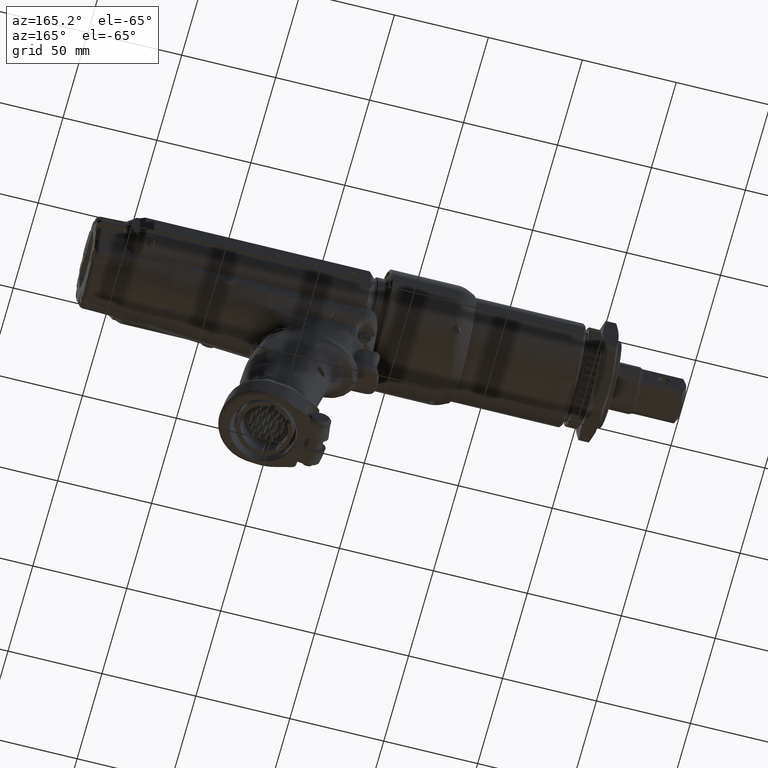
[diagram: clean part render]
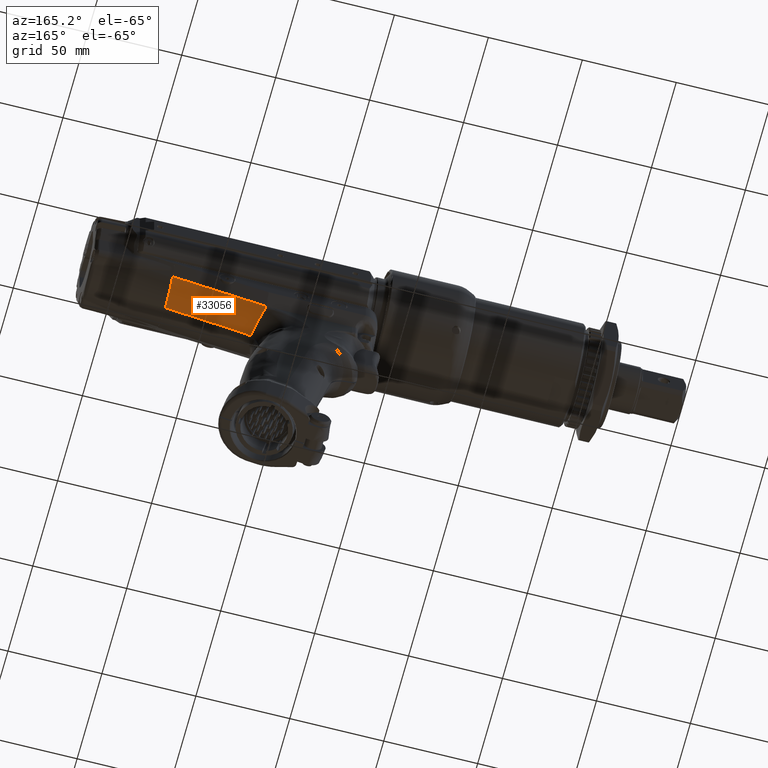
[diagram: same view with one face highlighted and labeled with its STEP entity id]
A machine part, auxiliary view. The second image highlights one B-rep face of the part: STEP entity #33056.
In plain terms, the highlighted face is a freeform B-spline surface patch.
Its self-contained STEP definition (entity closure, byte-faithful):
#2241=LINE('',#70767,#4224);
#4224=VECTOR('',#39854,10.);
#6751=FACE_OUTER_BOUND('',#8584,.T.);
#8584=EDGE_LOOP('',(#23943,#23944,#23945,#23946,#23947));
#11849=B_SPLINE_CURVE_WITH_KNOTS('',3,(#68667,#68668,#68669,#68670),
 .UNSPECIFIED.,.F.,.F.,(4,4),(0.,1.00597880598376),.UNSPECIFIED.);
#11897=B_SPLINE_CURVE_WITH_KNOTS('',3,(#71187,#71188,#71189,#71190,#71191,
#71192,#71193,#71194,#71195,#71196,#71197,#71198,#71199,#71200,#71201,#71202,
#71203,#71204,#71205,#71206,#71207,#71208,#71209,#71210,#71211,#71212),
 .UNSPECIFIED.,.F.,.F.,(4,2,2,2,2,2,2,2,2,2,2,2,4),(1.34517341830377,3.0744719434439,
4.61170791516585,6.1489438868878,9.2234158303317,12.2978877737756,15.3723597172195,
16.9095956889415,18.4468316606634,19.9840676323854,21.5213036041073,23.0585395758293,
24.1925660659876),.UNSPECIFIED.);
#11906=B_SPLINE_CURVE_WITH_KNOTS('',3,(#72020,#72021,#72022,#72023,#72024,
#72025,#72026,#72027,#72028,#72029,#72030,#72031,#72032,#72033),
 .UNSPECIFIED.,.F.,.F.,(4,2,2,2,2,2,4),(-3.58604075800134,-3.57445468263625,
-3.55857556568161,-3.5499163420919,-3.49172037456737,-2.32779805726946,
0.),.UNSPECIFIED.);
#11907=B_SPLINE_CURVE_WITH_KNOTS('',3,(#72034,#72035,#72036,#72037,#72038,
#72039,#72040,#72041,#72042,#72043,#72044,#72045,#72046,#72047,#72048,#72049,
#72050,#72051,#72052,#72053,#72054,#72055),.UNSPECIFIED.,.F.,.F.,(4,3,3,
3,3,3,3,4),(0.12075128988608,1.00000000015956,2.00000000013297,3.00000000010637,
4.00000000007978,5.00000000005319,6.00000000002659,7.),.UNSPECIFIED.);
#13532=VERTEX_POINT('',#66902);
#13663=VERTEX_POINT('',#68665);
#13698=VERTEX_POINT('',#70765);
#13704=VERTEX_POINT('',#71186);
#13709=VERTEX_POINT('',#72019);
#17461=EDGE_CURVE('',#13663,#13532,#11849,.T.);
#17524=EDGE_CURVE('',#13663,#13698,#2241,.T.);
#17534=EDGE_CURVE('',#13532,#13704,#11897,.T.);
#17544=EDGE_CURVE('',#13704,#13709,#11906,.T.);
#17545=EDGE_CURVE('',#13709,#13698,#11907,.T.);
#23943=ORIENTED_EDGE('',*,*,#17544,.F.);
#23944=ORIENTED_EDGE('',*,*,#17534,.F.);
#23945=ORIENTED_EDGE('',*,*,#17461,.F.);
#23946=ORIENTED_EDGE('',*,*,#17524,.T.);
#23947=ORIENTED_EDGE('',*,*,#17545,.F.);
#30609=B_SPLINE_SURFACE_WITH_KNOTS('',3,3,((#71799,#71800,#71801,#71802,
#71803,#71804,#71805,#71806,#71807,#71808),(#71809,#71810,#71811,#71812,
#71813,#71814,#71815,#71816,#71817,#71818),(#71819,#71820,#71821,#71822,
#71823,#71824,#71825,#71826,#71827,#71828),(#71829,#71830,#71831,#71832,
#71833,#71834,#71835,#71836,#71837,#71838),(#71839,#71840,#71841,#71842,
#71843,#71844,#71845,#71846,#71847,#71848),(#71849,#71850,#71851,#71852,
#71853,#71854,#71855,#71856,#71857,#71858),(#71859,#71860,#71861,#71862,
#71863,#71864,#71865,#71866,#71867,#71868),(#71869,#71870,#71871,#71872,
#71873,#71874,#71875,#71876,#71877,#71878),(#71879,#71880,#71881,#71882,
#71883,#71884,#71885,#71886,#71887,#71888),(#71889,#71890,#71891,#71892,
#71893,#71894,#71895,#71896,#71897,#71898),(#71899,#71900,#71901,#71902,
#71903,#71904,#71905,#71906,#71907,#71908),(#71909,#71910,#71911,#71912,
#71913,#71914,#71915,#71916,#71917,#71918),(#71919,#71920,#71921,#71922,
#71923,#71924,#71925,#71926,#71927,#71928),(#71929,#71930,#71931,#71932,
#71933,#71934,#71935,#71936,#71937,#71938),(#71939,#71940,#71941,#71942,
#71943,#71944,#71945,#71946,#71947,#71948),(#71949,#71950,#71951,#71952,
#71953,#71954,#71955,#71956,#71957,#71958),(#71959,#71960,#71961,#71962,
#71963,#71964,#71965,#71966,#71967,#71968),(#71969,#71970,#71971,#71972,
#71973,#71974,#71975,#71976,#71977,#71978),(#71979,#71980,#71981,#71982,
#71983,#71984,#71985,#71986,#71987,#71988),(#71989,#71990,#71991,#71992,
#71993,#71994,#71995,#71996,#71997,#71998),(#71999,#72000,#72001,#72002,
#72003,#72004,#72005,#72006,#72007,#72008),(#72009,#72010,#72011,#72012,
#72013,#72014,#72015,#72016,#72017,#72018)),.UNSPECIFIED.,.F.,.F.,.F.,(4,
2,2,2,2,2,2,2,2,2,4),(4,1,1,1,1,1,1,4),(0.,24.3228684679509,36.4843027019263,
39.5246612604202,41.0448405396671,41.8049301792906,42.1849749991023,42.565019818914,
44.085199098161,45.6053783774079,48.6457369359018),(0.115280206662485,1.,
2.,3.,4.,5.,6.,7.),.UNSPECIFIED.);
#33056=ADVANCED_FACE('',(#6751),#30609,.T.);
#39854=DIRECTION('',(0.98380899082009,-0.00194793026394746,0.179209584423499));
#66902=CARTESIAN_POINT('',(56.3261365819595,14.4149653299118,-38.7505730793563));
#68665=CARTESIAN_POINT('',(55.9999999999243,15.0000000000407,-37.999999999654));
#68667=CARTESIAN_POINT('Ctrl Pts',(55.9999999999243,15.0000000000407,-37.999999999654));
#68668=CARTESIAN_POINT('Ctrl Pts',(56.1085897214327,14.80377939964,-38.2493046604184));
#68669=CARTESIAN_POINT('Ctrl Pts',(56.217418523031,14.6099304363081,-38.5003444505288));
#68670=CARTESIAN_POINT('Ctrl Pts',(56.3261365819596,14.4149653299118,-38.7505730793563));
#70765=CARTESIAN_POINT('',(105.999999999922,14.9010005867999,-28.8920539405218));
#70767=CARTESIAN_POINT('',(55.9999999999291,15.0000000000865,-37.9999999996798));
#71186=CARTESIAN_POINT('',(60.70561121426,0.299999986791231,-46.1517619440249));
#71187=CARTESIAN_POINT('Ctrl Pts',(56.3261365819596,14.4149653299118,-38.7505730793563));
#71188=CARTESIAN_POINT('Ctrl Pts',(56.4659033414523,14.164320600603,-39.072264441895));
#71189=CARTESIAN_POINT('Ctrl Pts',(56.6054754103847,13.911859432446,-39.3925914315026));
#71190=CARTESIAN_POINT('Ctrl Pts',(56.8672296330894,13.4178072371134,-39.9846247474012));
#71191=CARTESIAN_POINT('Ctrl Pts',(56.989463270786,13.1770957475516,-40.2568607714395));
#71192=CARTESIAN_POINT('Ctrl Pts',(57.231275672829,12.6779221344053,-40.7856974954742));
#71193=CARTESIAN_POINT('Ctrl Pts',(57.3509219412665,12.4196720901509,-41.0425945184102));
#71194=CARTESIAN_POINT('Ctrl Pts',(57.7052458912592,11.6200271729274,-41.7886292203272));
#71195=CARTESIAN_POINT('Ctrl Pts',(57.9353882340483,11.0538387224606,-42.2533967585892));
#71196=CARTESIAN_POINT('Ctrl Pts',(58.3804489289384,9.86496666768318,-43.1124369897286));
#71197=CARTESIAN_POINT('Ctrl Pts',(58.5952354408537,9.24171284672317,-43.5060653725463));
#71198=CARTESIAN_POINT('Ctrl Pts',(59.0061894296029,7.94678854537632,-44.2158536842459));
#71199=CARTESIAN_POINT('Ctrl Pts',(59.2024457589084,7.27536658492243,-44.5323954021117));
#71200=CARTESIAN_POINT('Ctrl Pts',(59.4807089950643,6.23927982510829,-44.9456065668083));
#71201=CARTESIAN_POINT('Ctrl Pts',(59.5707510352128,5.8891126203335,-45.0730392206096));
#71202=CARTESIAN_POINT('Ctrl Pts',(59.7452003121586,5.18046999786992,-45.3069980398824));
#71203=CARTESIAN_POINT('Ctrl Pts',(59.8293892743297,4.82185207983271,-45.4132377180224));
#71204=CARTESIAN_POINT('Ctrl Pts',(59.9927795593587,4.09825172771962,-45.605786429009));
#71205=CARTESIAN_POINT('Ctrl Pts',(60.0721680186631,3.73335618623016,-45.6923476337625));
#71206=CARTESIAN_POINT('Ctrl Pts',(60.2280112622222,2.99941844855845,-45.8483841822349));
#71207=CARTESIAN_POINT('Ctrl Pts',(60.3049513068933,2.63041298851803,-45.9184869642242));
#71208=CARTESIAN_POINT('Ctrl Pts',(60.4563565227592,1.88954007002731,-46.0422821012445));
#71209=CARTESIAN_POINT('Ctrl Pts',(60.5290616451764,1.51633763270145,-46.0936121774255));
#71210=CARTESIAN_POINT('Ctrl Pts',(60.6363951320423,0.86129423839057,-46.1463636526653));
#71211=CARTESIAN_POINT('Ctrl Pts',(60.6758596636891,0.581033979617771,-46.1571024399937));
#71212=CARTESIAN_POINT('Ctrl Pts',(60.705611402858,0.299999999100237,-46.1517623469895));
#71799=CARTESIAN_POINT('Ctrl Pts',(106.00000000002,0.286408146883866,-36.6450711841949));
#71800=CARTESIAN_POINT('Ctrl Pts',(106.00000000002,1.01904992677159,-36.6334309656997));
#71801=CARTESIAN_POINT('Ctrl Pts',(106.00000000002,2.57875504435273,-36.5134492391408));
#71802=CARTESIAN_POINT('Ctrl Pts',(106.00000000002,4.93284851925522,-36.0178767487965));
#71803=CARTESIAN_POINT('Ctrl Pts',(106.00000000002,7.27217560998411,-35.1756252887555));
#71804=CARTESIAN_POINT('Ctrl Pts',(106.00000000001,9.49381853843909,-34.0090958818414));
#71805=CARTESIAN_POINT('Ctrl Pts',(106.00000000002,11.533740298599,-32.5409764939364));
#71806=CARTESIAN_POINT('Ctrl Pts',(106.00000000001,13.3154423112874,-30.8416598821155));
#71807=CARTESIAN_POINT('Ctrl Pts',(106.00000000002,14.3651762033672,-29.5306245737594));
#71808=CARTESIAN_POINT('Ctrl Pts',(106.00000000002,14.9010005864599,-28.8920539402194));
#71809=CARTESIAN_POINT('Ctrl Pts',(98.3621146121276,0.285316752661627,-37.9919811132285));
#71810=CARTESIAN_POINT('Ctrl Pts',(98.3343848197016,1.01522251476631,-37.9859531687083));
#71811=CARTESIAN_POINT('Ctrl Pts',(98.2744151344326,2.57001570966359,-37.8835686873051));
#71812=CARTESIAN_POINT('Ctrl Pts',(98.1771571424396,4.91971399228787,-37.4125091049355));
#71813=CARTESIAN_POINT('Ctrl Pts',(98.0736487616606,7.25803020090537,-36.5959770584005));
#71814=CARTESIAN_POINT('Ctrl Pts',(97.9681564006506,9.48223165329008,-35.4552990400664));
#71815=CARTESIAN_POINT('Ctrl Pts',(97.8635062935296,11.5283125461865,-34.0124604004484));
#71816=CARTESIAN_POINT('Ctrl Pts',(97.7639237083197,13.3193961448075,-32.3368462059924));
#71817=CARTESIAN_POINT('Ctrl Pts',(97.6991751899906,14.3776308223544,-31.0409806842335));
#71818=CARTESIAN_POINT('Ctrl Pts',(97.6667258579997,14.9175003715187,-30.4100341679545));
#71819=CARTESIAN_POINT('Ctrl Pts',(90.7241928670846,0.284391488413744,-39.3389454882409));
#71820=CARTESIAN_POINT('Ctrl Pts',(90.6687735966966,1.01197847016374,-39.3387622591548));
#71821=CARTESIAN_POINT('Ctrl Pts',(90.5492275694566,2.56262260013075,-39.2562178433245));
#71822=CARTESIAN_POINT('Ctrl Pts',(90.3549747771396,4.90873866208485,-38.8111947595114));
#71823=CARTESIAN_POINT('Ctrl Pts',(90.1480884158596,7.24646213321365,-38.0211666665274));
#71824=CARTESIAN_POINT('Ctrl Pts',(89.9370900720106,9.47321070436787,-36.9063204503864));
#71825=CARTESIAN_POINT('Ctrl Pts',(89.7276285062596,11.5249979187871,-35.4879166028344));
#71826=CARTESIAN_POINT('Ctrl Pts',(89.5281660556396,13.3246029552765,-33.8343962098995));
#71827=CARTESIAN_POINT('Ctrl Pts',(89.3983777050996,14.3904864211959,-32.5521065354365));
#71828=CARTESIAN_POINT('Ctrl Pts',(89.3333418277296,14.9340003741548,-31.9280344128154));
#71829=CARTESIAN_POINT('Ctrl Pts',(79.2673679769072,0.283258166671502,-41.359455755252));
#71830=CARTESIAN_POINT('Ctrl Pts',(79.1704793659144,1.00799958969609,-41.3683958392887));
#71831=CARTESIAN_POINT('Ctrl Pts',(78.9621788626311,2.55347022749819,-41.3190512117756));
#71832=CARTESIAN_POINT('Ctrl Pts',(78.6228480249399,4.89538285064989,-40.9154185670594));
#71833=CARTESIAN_POINT('Ctrl Pts',(78.2611055507902,7.2328189129618,-40.1663480653154));
#71834=CARTESIAN_POINT('Ctrl Pts',(77.8918381089495,9.46337169773586,-39.0902174227373));
#71835=CARTESIAN_POINT('Ctrl Pts',(77.5249222667396,11.523066707088,-37.7071657711063));
#71836=CARTESIAN_POINT('Ctrl Pts',(77.17519365581,13.3342160209369,-36.0843160581074));
#71837=CARTESIAN_POINT('Ctrl Pts',(76.9474047926494,14.4103465369534,-34.8199433365424));
#71838=CARTESIAN_POINT('Ctrl Pts',(76.8332816901199,14.9587503466118,-34.2050318823613));
#71839=CARTESIAN_POINT('Ctrl Pts',(75.4482561083189,0.282922871353646,-42.0330011231881));
#71840=CARTESIAN_POINT('Ctrl Pts',(75.337562715549,1.00682126395085,-42.0450395875599));
#71841=CARTESIAN_POINT('Ctrl Pts',(75.0997950173716,2.55074140931179,-42.0073270304746));
#71842=CARTESIAN_POINT('Ctrl Pts',(74.7122007039995,4.89144731693492,-41.6178721370143));
#71843=CARTESIAN_POINT('Ctrl Pts',(74.2989039051397,7.22888757253245,-40.8826474342794));
#71844=CARTESIAN_POINT('Ctrl Pts',(73.8769088571596,9.46070568591568,-39.8194113172183));
#71845=CARTESIAN_POINT('Ctrl Pts',(73.4574996014596,11.5229283101372,-38.4479236455164));
#71846=CARTESIAN_POINT('Ctrl Pts',(73.0576378802995,13.3377199746561,-36.8348843647844));
#71847=CARTESIAN_POINT('Ctrl Pts',(72.7971286621602,14.4170623866499,-35.5760764357884));
#71848=CARTESIAN_POINT('Ctrl Pts',(72.6666185391802,14.9670002907791,-34.9640267469203));
#71849=CARTESIAN_POINT('Ctrl Pts',(70.6746589640868,0.282556821574554,-42.8748972627098));
#71850=CARTESIAN_POINT('Ctrl Pts',(70.5467137406872,1.00553227988128,-42.8908845943255));
#71851=CARTESIAN_POINT('Ctrl Pts',(70.2722174091561,2.54771522594755,-42.8684259691137));
#71852=CARTESIAN_POINT('Ctrl Pts',(69.8243451238802,4.88714513355119,-42.4971821311734));
#71853=CARTESIAN_POINT('Ctrl Pts',(69.3466116446395,7.22471015198028,-41.7795196238923));
#71854=CARTESIAN_POINT('Ctrl Pts',(68.8586660156295,9.45810664841367,-40.7324018033474));
#71855=CARTESIAN_POINT('Ctrl Pts',(68.3735514032403,11.5233593255956,-39.3751072173393));
#71856=CARTESIAN_POINT('Ctrl Pts',(67.9108924756399,13.3424580152192,-37.7738270021882));
#71857=CARTESIAN_POINT('Ctrl Pts',(67.6093660329195,14.4255717198208,-36.5214736454993));
#71858=CARTESIAN_POINT('Ctrl Pts',(67.4583164504299,14.9773126678257,-35.9127654366673));
#71859=CARTESIAN_POINT('Ctrl Pts',(69.7199614093185,0.282486161379627,-43.0432717424315));
#71860=CARTESIAN_POINT('Ctrl Pts',(69.5885664995837,1.00528330482026,-43.0600511064181));
#71861=CARTESIAN_POINT('Ctrl Pts',(69.3067314925679,2.5471282004563,-43.0406795032592));
#71862=CARTESIAN_POINT('Ctrl Pts',(68.8468110503197,4.88631389780925,-42.6731007322953));
#71863=CARTESIAN_POINT('Ctrl Pts',(68.3561978749301,7.22390951024783,-41.9589617907423));
#71864=CARTESIAN_POINT('Ctrl Pts',(67.8550696465097,9.4576215070647,-40.9150660520263));
#71865=CARTESIAN_POINT('Ctrl Pts',(67.3568211475501,11.5234740409599,-39.5605954848052));
#71866=CARTESIAN_POINT('Ctrl Pts',(66.8816093510502,13.3434224663339,-37.9616405189963));
#71867=CARTESIAN_POINT('Ctrl Pts',(66.57188355642,14.4272788777611,-36.7105521633302));
#71868=CARTESIAN_POINT('Ctrl Pts',(66.4167281494399,14.9793750004447,-36.1025000379063));
#71869=CARTESIAN_POINT('Ctrl Pts',(68.2877893262598,0.282384679720785,-43.2958632146105));
#71870=CARTESIAN_POINT('Ctrl Pts',(68.1512261367379,1.00492549889617,-43.3138405013665));
#71871=CARTESIAN_POINT('Ctrl Pts',(67.858400856752,2.54628093479179,-43.2991451748624));
#71872=CARTESIAN_POINT('Ctrl Pts',(67.3804207267701,4.8851204296319,-42.9370999818043));
#71873=CARTESIAN_POINT('Ctrl Pts',(66.8704897229297,7.22277230613454,-42.2282655142703));
#71874=CARTESIAN_POINT('Ctrl Pts',(66.3495779531601,9.45695732766414,-41.1892036337802));
#71875=CARTESIAN_POINT('Ctrl Pts',(65.8316075658901,11.5236985277893,-39.8389508992443));
#71876=CARTESIAN_POINT('Ctrl Pts',(65.3375352525497,13.3449003834678,-38.2434480923383));
#71877=CARTESIAN_POINT('Ctrl Pts',(65.0154825146198,14.4298498645998,-36.9942214682032));
#71878=CARTESIAN_POINT('Ctrl Pts',(64.8541550634897,14.9824688768272,-36.3871366655313));
#71879=CARTESIAN_POINT('Ctrl Pts',(67.8104912771136,0.282350245427411,-43.3800299519939));
#71880=CARTESIAN_POINT('Ctrl Pts',(67.6721869685868,1.00480399848389,-43.3983991139146));
#71881=CARTESIAN_POINT('Ctrl Pts',(67.3756664719135,2.54599173315439,-43.3852919204727));
#71882=CARTESIAN_POINT('Ctrl Pts',(66.8916296661698,4.88471172647018,-43.0251028718482));
#71883=CARTESIAN_POINT('Ctrl Pts',(66.3752375624597,7.22238023935258,-42.3180436855202));
#71884=CARTESIAN_POINT('Ctrl Pts',(65.84772598836,9.45672297502012,-41.2805952203882));
#71885=CARTESIAN_POINT('Ctrl Pts',(65.3231934938201,11.5237626540425,-39.9317453658033));
#71886=CARTESIAN_POINT('Ctrl Pts',(64.8228622528402,13.3453866238036,-38.3373853295193));
#71887=CARTESIAN_POINT('Ctrl Pts',(64.4967300222194,14.4307047305017,-37.0887706818622));
#71888=CARTESIAN_POINT('Ctrl Pts',(64.3333589854799,14.9835000469531,-36.4820043172642));
#71889=CARTESIAN_POINT('Ctrl Pts',(67.0944092055758,0.282304350872165,-43.5063573532124));
#71890=CARTESIAN_POINT('Ctrl Pts',(66.9535633112038,1.00464215455226,-43.5253466261794));
#71891=CARTESIAN_POINT('Ctrl Pts',(66.6516283333137,2.54560813945856,-43.514557433358));
#71892=CARTESIAN_POINT('Ctrl Pts',(66.1586518920601,4.88417920064548,-43.1571397056043));
#71893=CARTESIAN_POINT('Ctrl Pts',(65.6326552228199,7.2218882624318,-42.4527321684653));
#71894=CARTESIAN_POINT('Ctrl Pts',(65.09526649752,9.45646714281535,-41.4176947374583));
#71895=CARTESIAN_POINT('Ctrl Pts',(64.5608464241902,11.5239376506972,-40.0709426077973));
#71896=CARTESIAN_POINT('Ctrl Pts',(64.0510195823997,13.3461627098151,-38.4782928060423));
#71897=CARTESIAN_POINT('Ctrl Pts',(63.71865411889,14.4320019774683,-37.2305951788513));
#71898=CARTESIAN_POINT('Ctrl Pts',(63.5521645420601,14.9850468027883,-36.6243058543202));
#71899=CARTESIAN_POINT('Ctrl Pts',(66.8557111015127,0.282278848057283,-43.5483503037052));
#71900=CARTESIAN_POINT('Ctrl Pts',(66.713870580875,1.00455182816796,-43.5674773119724));
#71901=CARTESIAN_POINT('Ctrl Pts',(66.4098672464972,2.54538745144413,-43.5576291087704));
#71902=CARTESIAN_POINT('Ctrl Pts',(65.9136163672199,4.88385282993206,-43.2011798707873));
#71903=CARTESIAN_POINT('Ctrl Pts',(65.3842513177794,7.22154660837647,-42.4976874141992));
#71904=CARTESIAN_POINT('Ctrl Pts',(64.8435436647303,9.45620503645072,-41.4634694129642));
#71905=CARTESIAN_POINT('Ctrl Pts',(64.3059462021099,11.5238504358124,-40.1174159629872));
#71906=CARTESIAN_POINT('Ctrl Pts',(63.7932076836302,13.3463352369503,-38.5253199652922));
#71907=CARTESIAN_POINT('Ctrl Pts',(63.4590253262001,14.4324070263482,-37.2779066969562));
#71908=CARTESIAN_POINT('Ctrl Pts',(63.29161836265,14.9855626811676,-36.6717666652853));
#71909=CARTESIAN_POINT('Ctrl Pts',(66.4978377178743,0.28227926628758,-43.611745140878));
#71910=CARTESIAN_POINT('Ctrl Pts',(66.3550396366165,1.00455411312518,-43.631340177061));
#71911=CARTESIAN_POINT('Ctrl Pts',(66.0488849556702,2.54540654469135,-43.6222980449515));
#71912=CARTESIAN_POINT('Ctrl Pts',(65.5487677083299,4.88392479916696,-43.2671554076042));
#71913=CARTESIAN_POINT('Ctrl Pts',(65.0149150323302,7.22170433185168,-42.5649352307673));
#71914=CARTESIAN_POINT('Ctrl Pts',(64.4692688835,9.45647901094397,-41.5318981205023));
#71915=CARTESIAN_POINT('Ctrl Pts',(63.9264042216998,11.5242688455867,-40.1868993177053));
#71916=CARTESIAN_POINT('Ctrl Pts',(63.4082956283298,13.3469193936774,-38.5956933188582));
#71917=CARTESIAN_POINT('Ctrl Pts',(63.0703775665094,14.4331182542594,-37.3487812739032));
#71918=CARTESIAN_POINT('Ctrl Pts',(62.9011202857798,14.9863358627795,-36.7428993736953));
#71919=CARTESIAN_POINT('Ctrl Pts',(66.3779421039801,0.282195491532929,-43.632025245629));
#71920=CARTESIAN_POINT('Ctrl Pts',(66.2336817786208,1.00425585000893,-43.6511962840892));
#71921=CARTESIAN_POINT('Ctrl Pts',(65.9247880789125,2.54465184235794,-43.6437396055285));
#71922=CARTESIAN_POINT('Ctrl Pts',(65.4211950705601,4.88272814361187,-43.2893330987813));
#71923=CARTESIAN_POINT('Ctrl Pts',(64.88472195195,7.22029991194115,-42.5877360674203));
#71924=CARTESIAN_POINT('Ctrl Pts',(64.3374608823894,9.45511985069509,-41.5551771626683));
#71925=CARTESIAN_POINT('Ctrl Pts',(63.7940594307699,11.5232138997956,-40.2104944533813));
#71926=CARTESIAN_POINT('Ctrl Pts',(63.2764757611801,13.3464060619083,-38.6194353339112));
#71927=CARTESIAN_POINT('Ctrl Pts',(62.9396052975496,14.4331290160435,-37.3725138348262));
#71928=CARTESIAN_POINT('Ctrl Pts',(62.7708097574002,14.9865938760973,-36.7666365989653));
#71929=CARTESIAN_POINT('Ctrl Pts',(66.1410897501803,0.282445013095509,-43.6768286580881));
#71930=CARTESIAN_POINT('Ctrl Pts',(65.9995703249353,1.00514551350445,-43.6980375771685));
#71931=CARTESIAN_POINT('Ctrl Pts',(65.6952145835741,2.54692461024077,-43.6872225094062));
#71932=CARTESIAN_POINT('Ctrl Pts',(65.1954855789197,4.88640095904669,-43.3328097808213));
#71933=CARTESIAN_POINT('Ctrl Pts',(64.6593036350702,7.22473184295404,-42.6314831212703));
#71934=CARTESIAN_POINT('Ctrl Pts',(64.1085994415996,9.45961008592946,-41.5994708726602));
#71935=CARTESIAN_POINT('Ctrl Pts',(63.5580088641697,11.5270401828563,-40.2556039935483));
#71936=CARTESIAN_POINT('Ctrl Pts',(63.0299152600998,13.3488987530835,-38.6655871579182));
#71937=CARTESIAN_POINT('Ctrl Pts',(62.6837092756702,14.4342760318096,-37.4195247175023));
#71938=CARTESIAN_POINT('Ctrl Pts',(62.5104592895402,14.98710936697,-36.8140617593243));
#71939=CARTESIAN_POINT('Ctrl Pts',(66.0226486630169,0.282537726154782,-43.7008773497193));
#71940=CARTESIAN_POINT('Ctrl Pts',(65.8818533155399,1.00547509458253,-43.7227185756758));
#71941=CARTESIAN_POINT('Ctrl Pts',(65.5784957401761,2.54775080833778,-43.7107178863875));
#71942=CARTESIAN_POINT('Ctrl Pts',(65.0793716393198,4.8877398703672,-43.3561578557952));
#71943=CARTESIAN_POINT('Ctrl Pts',(64.5426310831596,7.22635398120132,-42.6547541542922));
#71944=CARTESIAN_POINT('Ctrl Pts',(63.9901807534395,9.46126402530654,-41.6227414178822));
#71945=CARTESIAN_POINT('Ctrl Pts',(63.4366705875097,11.5284665064794,-40.2789527870103));
#71946=CARTESIAN_POINT('Ctrl Pts',(62.9046442799397,13.3498565011365,-38.6890869610982));
#71947=CARTESIAN_POINT('Ctrl Pts',(62.5550939674301,14.4347572774093,-37.4431749095102));
#71948=CARTESIAN_POINT('Ctrl Pts',(62.3802384686703,14.9873672026679,-36.8377826435703));
#71949=CARTESIAN_POINT('Ctrl Pts',(65.4329644628362,0.283157288443637,-43.8292893815113));
#71950=CARTESIAN_POINT('Ctrl Pts',(65.2971428639841,1.00767424034915,-43.8547275310842));
#71951=CARTESIAN_POINT('Ctrl Pts',(65.0006916861273,2.55321016992143,-43.8344762396059));
#71952=CARTESIAN_POINT('Ctrl Pts',(64.5068002028699,4.89656496562256,-43.4777679409733));
#71953=CARTESIAN_POINT('Ctrl Pts',(63.96826082869,7.23700776734487,-42.7746519540122));
#71954=CARTESIAN_POINT('Ctrl Pts',(63.4067661936794,9.4720655007735,-41.7414559459722));
#71955=CARTESIAN_POINT('Ctrl Pts',(62.8370081148102,11.5376830163917,-40.3970603740033));
#71956=CARTESIAN_POINT('Ctrl Pts',(62.2824464647799,13.3558812972658,-38.8071681725282));
#71957=CARTESIAN_POINT('Ctrl Pts',(61.9134195445301,14.4375587890093,-37.5616148368932));
#71958=CARTESIAN_POINT('Ctrl Pts',(61.7292353299497,14.9886561812468,-36.9563686730142));
#71959=CARTESIAN_POINT('Ctrl Pts',(64.9670916667321,0.283866187461371,-43.9582432708547));
#71960=CARTESIAN_POINT('Ctrl Pts',(64.8354326048786,1.01017764253798,-43.9858052808527));
#71961=CARTESIAN_POINT('Ctrl Pts',(64.5430902057344,2.5592175282071,-43.9558568622432));
#71962=CARTESIAN_POINT('Ctrl Pts',(64.05239944667,4.90625520435513,-43.5935341242502));
#71963=CARTESIAN_POINT('Ctrl Pts',(63.5114727739399,7.24867029795051,-42.8850399468573));
#71964=CARTESIAN_POINT('Ctrl Pts',(62.9418745903101,9.483832271287,-41.8469470304222));
#71965=CARTESIAN_POINT('Ctrl Pts',(62.3583562063402,11.5476302101346,-40.4982832667452));
#71966=CARTESIAN_POINT('Ctrl Pts',(61.7851376549995,13.3622273245671,-38.9049028359382));
#71967=CARTESIAN_POINT('Ctrl Pts',(61.4001864880499,14.4402883283788,-37.6574723967562));
#71968=CARTESIAN_POINT('Ctrl Pts',(61.2083615306999,14.9896875052599,-37.0512504823652));
#71969=CARTESIAN_POINT('Ctrl Pts',(64.052846570845,0.285757895133126,-44.2668669346062));
#71970=CARTESIAN_POINT('Ctrl Pts',(63.9301548260707,1.01682439632319,-44.2970791195313));
#71971=CARTESIAN_POINT('Ctrl Pts',(63.642705079216,2.57462265269348,-44.2418232319248));
#71972=CARTESIAN_POINT('Ctrl Pts',(63.1560989802599,4.93107350007649,-43.8606555674832));
#71973=CARTESIAN_POINT('Ctrl Pts',(62.6079036553799,7.27848621284962,-43.1336051996622));
#71974=CARTESIAN_POINT('Ctrl Pts',(62.0195287427102,9.51382787972971,-42.0780683450202));
#71975=CARTESIAN_POINT('Ctrl Pts',(61.4059126107702,11.5728461987308,-40.7135810339963));
#71976=CARTESIAN_POINT('Ctrl Pts',(60.7929006675301,13.3780746396808,-39.1065833642733));
#71977=CARTESIAN_POINT('Ctrl Pts',(60.3744702005794,14.4467568758381,-37.8512810450642));
#71978=CARTESIAN_POINT('Ctrl Pts',(60.1665481279794,14.9917502835777,-37.2410260878903));
#71979=CARTESIAN_POINT('Ctrl Pts',(63.6042640742487,0.286938488471251,-44.4466687045376));
#71980=CARTESIAN_POINT('Ctrl Pts',(63.4863550196924,1.0209594213742,-44.477370253266));
#71981=CARTESIAN_POINT('Ctrl Pts',(63.1996313553788,2.58399228538404,-44.4065354670453));
#71982=CARTESIAN_POINT('Ctrl Pts',(62.7138833269498,4.94615640135177,-44.0121125868732));
#71983=CARTESIAN_POINT('Ctrl Pts',(62.1608321722894,7.29658563995006,-43.2718559117893));
#71984=CARTESIAN_POINT('Ctrl Pts',(61.5618620153598,9.53200290684223,-42.2037412303963));
#71985=CARTESIAN_POINT('Ctrl Pts',(60.9320381442201,11.5880705264671,-40.8276660480812));
#71986=CARTESIAN_POINT('Ctrl Pts',(60.2980640714402,13.3875492952291,-39.2105065174782));
#71987=CARTESIAN_POINT('Ctrl Pts',(59.8622266570198,14.4504869468236,-37.9491867593012));
#71988=CARTESIAN_POINT('Ctrl Pts',(59.6459193247399,14.9927811225016,-37.3358632690323));
#71989=CARTESIAN_POINT('Ctrl Pts',(62.2938554468153,0.291221357108888,-45.0581374956491));
#71990=CARTESIAN_POINT('Ctrl Pts',(62.1908916592249,1.03590645881273,-45.0874418665314));
#71991=CARTESIAN_POINT('Ctrl Pts',(61.8997080327756,2.61698360199923,-44.9623970932901));
#71992=CARTESIAN_POINT('Ctrl Pts',(61.41123610723,4.99923601229945,-44.5174061360272));
#71993=CARTESIAN_POINT('Ctrl Pts',(60.8381857510401,7.36023142197363,-43.7264459580823));
#71994=CARTESIAN_POINT('Ctrl Pts',(60.2020965224299,9.59583425461082,-42.6097040673163));
#71995=CARTESIAN_POINT('Ctrl Pts',(59.51856298101,11.6414077118436,-41.1884654564883));
#71996=CARTESIAN_POINT('Ctrl Pts',(58.8170610141194,13.4205181220248,-39.5313197864612));
#71997=CARTESIAN_POINT('Ctrl Pts',(58.3261203158597,14.4631321963225,-38.2460402727742));
#71998=CARTESIAN_POINT('Ctrl Pts',(58.0832005064301,14.9958752874324,-37.6205264431092));
#71999=CARTESIAN_POINT('Ctrl Pts',(61.4662072422254,0.295079345010519,-45.563080268013));
#72000=CARTESIAN_POINT('Ctrl Pts',(61.3742286101579,1.04930659328106,-45.5875611964358));
#72001=CARTESIAN_POINT('Ctrl Pts',(61.0712650603488,2.64550963576879,-45.4162190370977));
#72002=CARTESIAN_POINT('Ctrl Pts',(60.5742798135295,5.04509865248049,-44.9228564497533));
#72003=CARTESIAN_POINT('Ctrl Pts',(59.9810470284399,7.41516681951916,-44.0830690151562));
#72004=CARTESIAN_POINT('Ctrl Pts',(59.3135030952696,9.65083776981661,-42.9191605788562));
#72005=CARTESIAN_POINT('Ctrl Pts',(58.5877827194897,11.6872177684274,-41.4537519380952));
#72006=CARTESIAN_POINT('Ctrl Pts',(57.8354578248097,13.4485754833573,-39.7571224445703));
#72007=CARTESIAN_POINT('Ctrl Pts',(57.3041897734799,14.4735063498711,-38.4479076983623));
#72008=CARTESIAN_POINT('Ctrl Pts',(57.0417119156998,14.9979374226262,-37.8102428812312));
#72009=CARTESIAN_POINT('Ctrl Pts',(60.7056104541438,0.299999890500544,-46.15176057336));
#72010=CARTESIAN_POINT('Ctrl Pts',(60.6245000208978,1.06630850838456,-46.1663480887647));
#72011=CARTESIAN_POINT('Ctrl Pts',(60.2985524706746,2.68023936783548,-45.9426817154064));
#72012=CARTESIAN_POINT('Ctrl Pts',(59.7827708674601,5.10091131096219,-45.3883888727602));
#72013=CARTESIAN_POINT('Ctrl Pts',(59.1589890415796,7.48197907886173,-44.4868168071842));
#72014=CARTESIAN_POINT('Ctrl Pts',(58.4499900868202,9.71766550497531,-43.2629357517662));
#72015=CARTESIAN_POINT('Ctrl Pts',(57.67273247561,11.7427652830609,-41.7410565025922));
#72016=CARTESIAN_POINT('Ctrl Pts',(56.8612413077796,13.4824064244041,-39.9936303211252));
#72017=CARTESIAN_POINT('Ctrl Pts',(56.2845990471303,14.48572779436,-38.6533920977662));
#72018=CARTESIAN_POINT('Ctrl Pts',(55.9999999999897,15.0000000000009,-37.9999999999943));
#72019=CARTESIAN_POINT('',(106.000000000009,0.299999999997032,-36.6448501098725));
#72020=CARTESIAN_POINT('Ctrl Pts',(60.7056104402634,0.29999999999822,-46.1517605772182));
#72021=CARTESIAN_POINT('Ctrl Pts',(61.5616720807838,0.29999999999822,-45.4888446810222));
#72022=CARTESIAN_POINT('Ctrl Pts',(62.498424094611,0.300000000017227,-44.93460606123));
#72023=CARTESIAN_POINT('Ctrl Pts',(64.8640752254945,0.300000000017227,-43.9094986998852));
#72024=CARTESIAN_POINT('Ctrl Pts',(65.7322745693182,0.29999999999822,-43.747222629681));
#72025=CARTESIAN_POINT('Ctrl Pts',(67.0981361090926,0.29999999999822,-43.505253550506));
#72026=CARTESIAN_POINT('Ctrl Pts',(68.6220146206914,0.29999999999822,-43.2367607147927));
#72027=CARTESIAN_POINT('Ctrl Pts',(69.728217492861,0.29999999999822,-43.0416555120398));
#72028=CARTESIAN_POINT('Ctrl Pts',(71.4399005380491,0.29999999999822,-42.7397684327194));
#72029=CARTESIAN_POINT('Ctrl Pts',(75.4518235849329,0.29999999999822,-42.0321895040526));
#72030=CARTESIAN_POINT('Ctrl Pts',(79.2727058432499,0.29999999999822,-41.3583200498075));
#72031=CARTESIAN_POINT('Ctrl Pts',(90.7352073807211,0.29999999999822,-39.3367821155887));
#72032=CARTESIAN_POINT('Ctrl Pts',(98.3585785943018,0.29999999999822,-37.9923782850635));
#72033=CARTESIAN_POINT('Ctrl Pts',(105.999999999983,0.29999999999822,-36.6448501097301));
#72034=CARTESIAN_POINT('Ctrl Pts',(105.999999999983,0.299999999994661,-36.6448501097301));
#72035=CARTESIAN_POINT('Ctrl Pts',(105.999999999979,1.02810496422081,-36.6327326673862));
#72036=CARTESIAN_POINT('Ctrl Pts',(105.999999999974,1.75570034166376,-36.5764834883334));
#72037=CARTESIAN_POINT('Ctrl Pts',(105.999999999969,2.47858002542908,-36.4758805005399));
#72038=CARTESIAN_POINT('Ctrl Pts',(105.999999999964,3.30073611766976,-36.3614612393964));
#72039=CARTESIAN_POINT('Ctrl Pts',(105.999999999958,4.11679231846243,-36.1896689941024));
#72040=CARTESIAN_POINT('Ctrl Pts',(105.999999999953,4.91470826731358,-35.9633976281158));
#72041=CARTESIAN_POINT('Ctrl Pts',(105.999999999947,5.71262421616472,-35.7371262621292));
#72042=CARTESIAN_POINT('Ctrl Pts',(105.999999999941,6.49239991307434,-35.4563757754499));
#72043=CARTESIAN_POINT('Ctrl Pts',(105.999999999934,7.25256158293831,-35.1215789642917));
#72044=CARTESIAN_POINT('Ctrl Pts',(105.999999999926,8.01272325280228,-34.7867821531336));
#72045=CARTESIAN_POINT('Ctrl Pts',(105.999999999917,8.75327089562061,-34.3979390174967));
#72046=CARTESIAN_POINT('Ctrl Pts',(105.999999999911,9.46353167705644,-33.9588308850279));
#72047=CARTESIAN_POINT('Ctrl Pts',(105.999999999905,10.1737924584923,-33.5197227525591));
#72048=CARTESIAN_POINT('Ctrl Pts',(105.999999999903,10.8537663785456,-33.0303496232586));
#72049=CARTESIAN_POINT('Ctrl Pts',(105.999999999897,11.4907036740204,-32.5024436233054));
#72050=CARTESIAN_POINT('Ctrl Pts',(105.999999999891,12.1276409694951,-31.9745376233522));
#72051=CARTESIAN_POINT('Ctrl Pts',(105.999999999881,12.7215416403913,-31.4080987527464));
#72052=CARTESIAN_POINT('Ctrl Pts',(105.999999999876,13.2809254488594,-30.797120490355));
#72053=CARTESIAN_POINT('Ctrl Pts',(105.999999999871,13.8403092573275,-30.1861422279636));
#72054=CARTESIAN_POINT('Ctrl Pts',(105.99999999987,14.3651762033674,-29.5306245737868));
#72055=CARTESIAN_POINT('Ctrl Pts',(105.999999999863,14.9010005864602,-28.8920539402479));